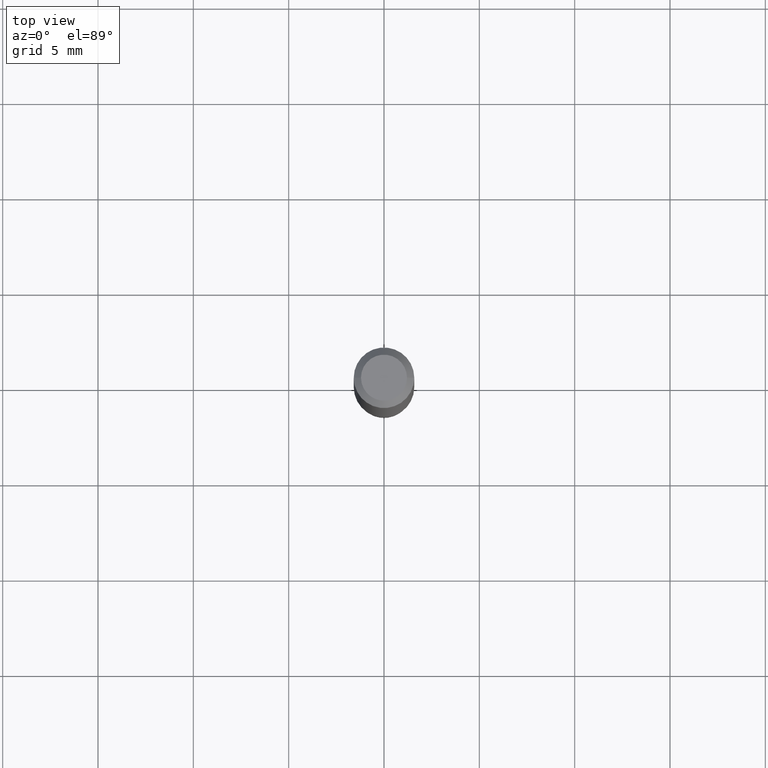
[diagram: clean part render]
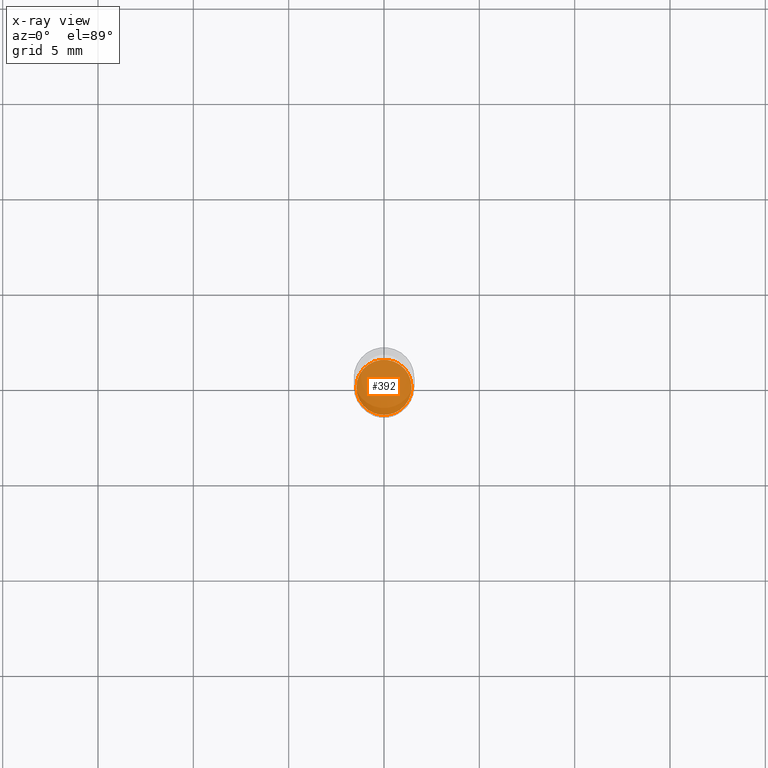
[diagram: x-ray — body ghosted, one internal face saturated and labeled with its STEP entity id]
A machine part, top view, then the same camera in x-ray: the body is ghosted and one INTERNAL B-rep face — a face not visible from any outside direction — is saturated and labeled: STEP entity #392.
In plain terms, the highlighted planar face has unit normal (-0, 0, 1).
Its self-contained STEP definition (entity closure, byte-faithful):
#16 = CARTESIAN_POINT ( 'NONE',  ( 2.824516471143833307E-29, -4.032660946363833383E-15, -1.155000000000000027 ) ) ;
#33 = DIRECTION ( 'NONE',  ( 1.000000000000000000, -6.982962677686265922E-15, 4.876176775795935793E-29 ) ) ;
#43 = DIRECTION ( 'NONE',  ( -2.445468806185136597E-29, 3.491481338843145583E-15, 1.000000000000000000 ) ) ;
#54 = AXIS2_PLACEMENT_3D ( 'NONE', #506, #43, #153 ) ;
#77 = PLANE ( 'NONE',  #471 ) ;
#153 = DIRECTION ( 'NONE',  ( 1.000000000000000000, -6.982962677686263555E-15, 0.000000000000000000 ) ) ;
#206 = VERTEX_POINT ( 'NONE', #496 ) ;
#212 = CIRCLE ( 'NONE', #424, 0.05700000000000001593 ) ;
#215 = EDGE_CURVE ( 'NONE', #348, #206, #212, .T. ) ;
#240 = ORIENTED_EDGE ( 'NONE', *, *, #497, .F. ) ;
#275 = FACE_OUTER_BOUND ( 'NONE', #439, .T. ) ;
#279 = DIRECTION ( 'NONE',  ( -2.438088387897960049E-29, 3.491481338843145188E-15, 1.000000000000000000 ) ) ;
#312 = CARTESIAN_POINT ( 'NONE',  ( 2.824516471143833307E-29, -4.032660946363833383E-15, -1.155000000000000027 ) ) ;
#333 = DIRECTION ( 'NONE',  ( -2.445468806185136597E-29, 3.491481338843145583E-15, 1.000000000000000000 ) ) ;
#335 = CIRCLE ( 'NONE', #54, 0.05700000000000001593 ) ;
#348 = VERTEX_POINT ( 'NONE', #380 ) ;
#380 = CARTESIAN_POINT ( 'NONE',  ( 0.05700000000000001593, -4.430689818991950396E-15, -1.155000000000000027 ) ) ;
#392 = ADVANCED_FACE ( 'NONE', ( #275 ), #77, .F. ) ;
#424 = AXIS2_PLACEMENT_3D ( 'NONE', #16, #333, #498 ) ;
#439 = EDGE_LOOP ( 'NONE', ( #476, #240 ) ) ;
#471 = AXIS2_PLACEMENT_3D ( 'NONE', #312, #279, #33 ) ;
#476 = ORIENTED_EDGE ( 'NONE', *, *, #215, .F. ) ;
#496 = CARTESIAN_POINT ( 'NONE',  ( -0.05700000000000001593, -3.625002359806465505E-15, -1.155000000000000027 ) ) ;
#497 = EDGE_CURVE ( 'NONE', #206, #348, #335, .T. ) ;
#498 = DIRECTION ( 'NONE',  ( 1.000000000000000000, -6.982962677686263555E-15, 0.000000000000000000 ) ) ;
#506 = CARTESIAN_POINT ( 'NONE',  ( 2.824516471143833307E-29, -4.032660946363833383E-15, -1.155000000000000027 ) ) ;